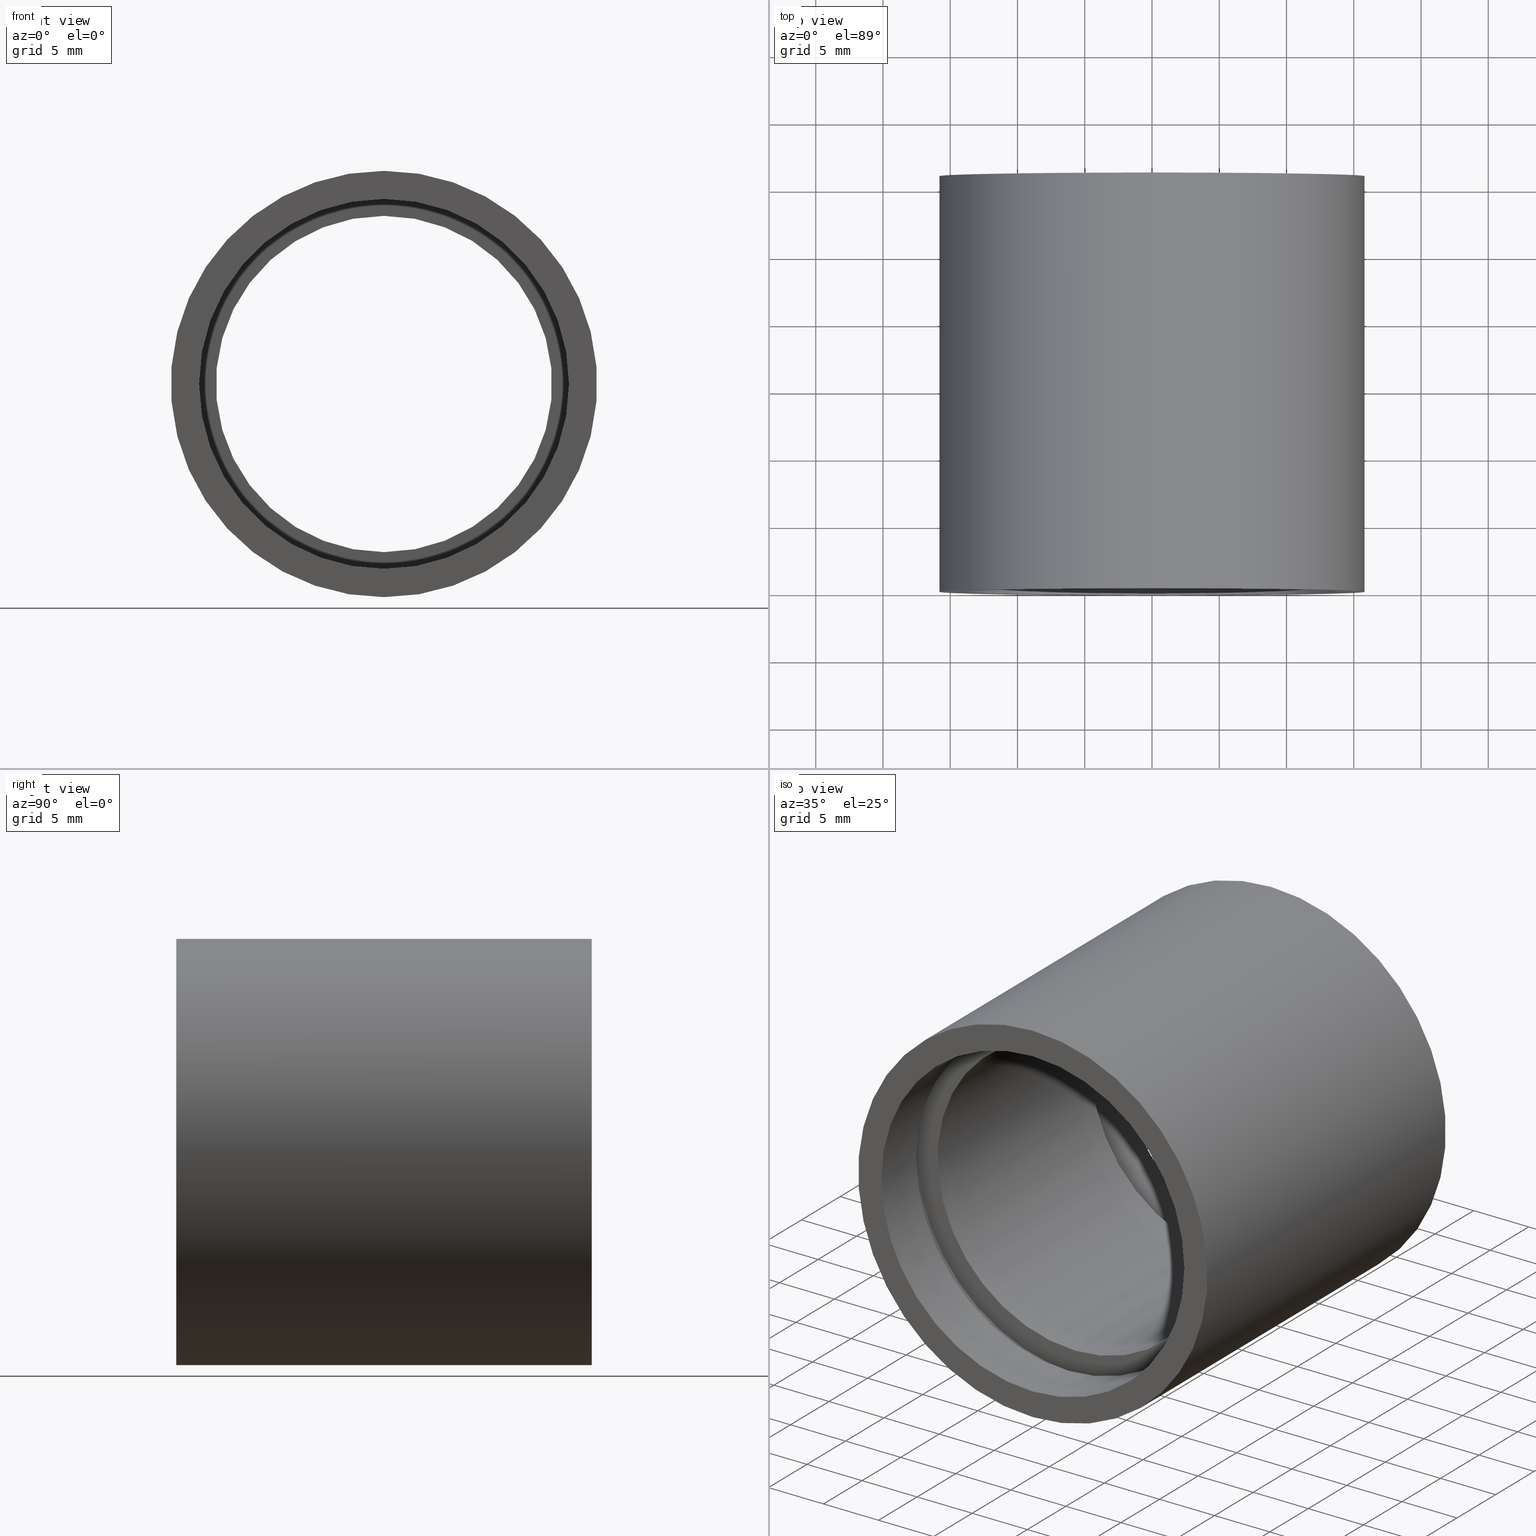
[diagram: canonical four-view strip — front | top / right | iso, engineering-drawing reading convention]
A machine part, canonical four-view strip (front | top / right | iso — engineering-drawing reading convention). The complete STEP part file that produces these views, byte-faithful:
ISO-10303-21;
HEADER;
FILE_DESCRIPTION (( 'STEP AP214' ),
    '1' );
FILE_NAME ('503053.STEP',
    '2019-09-06T07:38:26',
    ( '' ),
    ( '' ),
    'SwSTEP 2.0',
    'SolidWorks 2016',
    '' );
FILE_SCHEMA (( 'AUTOMOTIVE_DESIGN' ));
ENDSEC;

DATA;
#1 = ORIENTED_EDGE ( 'NONE', *, *, #299, .F. ) ;
#2 = PRODUCT_DEFINITION ( 'δ֪', '', #48, #396 ) ;
#3 = ORIENTED_EDGE ( 'NONE', *, *, #485, .T. ) ;
#4 = AXIS2_PLACEMENT_3D ( 'NONE', #561, #272, #467 ) ;
#5 = ORIENTED_EDGE ( 'NONE', *, *, #558, .F. ) ;
#6 =( NAMED_UNIT ( * ) PLANE_ANGLE_UNIT ( ) SI_UNIT ( $, .RADIAN. ) );
#7 =( GEOMETRIC_REPRESENTATION_CONTEXT ( 3 ) GLOBAL_UNCERTAINTY_ASSIGNED_CONTEXT ( ( #147 ) ) GLOBAL_UNIT_ASSIGNED_CONTEXT ( ( #611, #413, #362 ) ) REPRESENTATION_CONTEXT ( 'NONE', 'WORKASPACE' ) );
#8 = CARTESIAN_POINT ( 'NONE',  ( 0.0000000000000000000, 5.499999999999976900, 12.50000000000002000 ) ) ;
#9 =( GEOMETRIC_REPRESENTATION_CONTEXT ( 3 ) GLOBAL_UNCERTAINTY_ASSIGNED_CONTEXT ( ( #531 ) ) GLOBAL_UNIT_ASSIGNED_CONTEXT ( ( #210, #300, #399 ) ) REPRESENTATION_CONTEXT ( 'NONE', 'WORKASPACE' ) );
#10 = DIRECTION ( 'NONE',  ( -0.0000000000000000000, 1.000000000000000000, -0.0000000000000000000 ) ) ;
#11 = DIRECTION ( 'NONE',  ( 0.0000000000000000000, 0.0000000000000000000, 1.000000000000000000 ) ) ;
#12 = LINE ( 'NONE', #206, #423 ) ;
#13 = ORIENTED_EDGE ( 'NONE', *, *, #594, .T. ) ;
#14 = DIRECTION ( 'NONE',  ( 0.0000000000000000000, 0.0000000000000000000, 1.000000000000000000 ) ) ;
#15 = FACE_OUTER_BOUND ( 'NONE', #283, .T. ) ;
#16 = CARTESIAN_POINT ( 'NONE',  ( 1.757368156776454300E-015, 5.499999999999976900, -14.35000000000001900 ) ) ;
#17 = CARTESIAN_POINT ( 'NONE',  ( 0.0000000000000000000, 4.499999999999976000, 0.0000000000000000000 ) ) ;
#18 = EDGE_LOOP ( 'NONE', ( #434, #231, #613, #280 ) ) ;
#19 = FILL_AREA_STYLE ('',( #203 ) ) ;
#20 = AXIS2_PLACEMENT_3D ( 'NONE', #228, #363, #273 ) ;
#21 = CARTESIAN_POINT ( 'NONE',  ( 0.0000000000000000000, 4.499999999999976000, 14.35000000000001900 ) ) ;
#22 = CIRCLE ( 'NONE', #303, 15.85000000000002100 ) ;
#23 = AXIS2_PLACEMENT_3D ( 'NONE', #162, #119, #503 ) ;
#24 = EDGE_CURVE ( 'NONE', #71, #143, #395, .T. ) ;
#25 = DIRECTION ( 'NONE',  ( -0.0000000000000000000, 1.000000000000000000, -0.0000000000000000000 ) ) ;
#26 = DIRECTION ( 'NONE',  ( -0.0000000000000000000, 1.000000000000000000, -0.0000000000000000000 ) ) ;
#27 = CIRCLE ( 'NONE', #435, 12.50000000000002000 ) ;
#28 = DIRECTION ( 'NONE',  ( -0.0000000000000000000, 1.000000000000000000, -0.0000000000000000000 ) ) ;
#29 = DIRECTION ( 'NONE',  ( 0.0000000000000000000, 0.0000000000000000000, 1.000000000000000000 ) ) ;
#30 = CYLINDRICAL_SURFACE ( 'NONE', #20, 14.35000000000001900 ) ;
#31 = DIRECTION ( 'NONE',  ( 0.0000000000000000000, -0.0000000000000000000, -1.000000000000000000 ) ) ;
#32 = SURFACE_STYLE_FILL_AREA ( #459 ) ;
#33 = ORIENTED_EDGE ( 'NONE', *, *, #213, .F. ) ;
#34 = CIRCLE ( 'NONE', #292, 14.35000000000001900 ) ;
#35 = CARTESIAN_POINT ( 'NONE',  ( 0.0000000000000000000, 26.39999999999997700, 0.0000000000000000000 ) ) ;
#36 = SURFACE_STYLE_FILL_AREA ( #496 ) ;
#37 = PRESENTATION_LAYER_ASSIGNMENT (  '', '', ( #287 ) ) ;
#38 = CIRCLE ( 'NONE', #50, 14.25000000000001600 ) ;
#39 = DIRECTION ( 'NONE',  ( -0.0000000000000000000, 1.000000000000000000, -0.0000000000000000000 ) ) ;
#40 = EDGE_LOOP ( 'NONE', ( #229, #437, #525, #589 ) ) ;
#41 = ORIENTED_EDGE ( 'NONE', *, *, #504, .F. ) ;
#42 = EDGE_CURVE ( 'NONE', #438, #60, #256, .T. ) ;
#43 = ADVANCED_FACE ( 'NONE', ( #142 ), #414, .F. ) ;
#44 = AXIS2_PLACEMENT_3D ( 'NONE', #168, #312, #63 ) ;
#45 = UNCERTAINTY_MEASURE_WITH_UNIT (LENGTH_MEASURE( 1.000000000000000100E-005 ), #472, 'distance_accuracy_value', 'NONE');
#46 = CARTESIAN_POINT ( 'NONE',  ( 0.0000000000000000000, 4.499999999999976000, 0.0000000000000000000 ) ) ;
#47 = CIRCLE ( 'NONE', #130, 14.35000000000001900 ) ;
#48 = PRODUCT_DEFINITION_FORMATION_WITH_SPECIFIED_SOURCE ( '�κ�', '', #554, .NOT_KNOWN. ) ;
#49 = ORIENTED_EDGE ( 'NONE', *, *, #251, .T. ) ;
#50 = AXIS2_PLACEMENT_3D ( 'NONE', #100, #240, #584 ) ;
#51 = ORIENTED_EDGE ( 'NONE', *, *, #617, .F. ) ;
#52 = ORIENTED_EDGE ( 'NONE', *, *, #481, .F. ) ;
#53 = AXIS2_PLACEMENT_3D ( 'NONE', #177, #519, #411 ) ;
#54 = CARTESIAN_POINT ( 'NONE',  ( 0.0000000000000000000, 5.499999999999976900, 0.0000000000000000000 ) ) ;
#55 =( GEOMETRIC_REPRESENTATION_CONTEXT ( 3 ) GLOBAL_UNCERTAINTY_ASSIGNED_CONTEXT ( ( #377 ) ) GLOBAL_UNIT_ASSIGNED_CONTEXT ( ( #397, #212, #543 ) ) REPRESENTATION_CONTEXT ( 'NONE', 'WORKASPACE' ) );
#56 = ORIENTED_EDGE ( 'NONE', *, *, #81, .F. ) ;
#57 = ORIENTED_EDGE ( 'NONE', *, *, #137, .F. ) ;
#58 = CARTESIAN_POINT ( 'NONE',  ( 13.75000000000002100, -1.554524340841388500E-014, 0.0000000000000000000 ) ) ;
#59 = FACE_OUTER_BOUND ( 'NONE', #277, .T. ) ;
#60 = VERTEX_POINT ( 'NONE', #21 ) ;
#61 = FILL_AREA_STYLE_COLOUR ( '', #477 ) ;
#62 = SURFACE_STYLE_FILL_AREA ( #450 ) ;
#63 = DIRECTION ( 'NONE',  ( 0.0000000000000000000, 0.0000000000000000000, 1.000000000000000000 ) ) ;
#64 = VECTOR ( 'NONE', #385, 1000.000000000000000 ) ;
#65 = AXIS2_PLACEMENT_3D ( 'NONE', #46, #281, #96 ) ;
#66 = PLANE ( 'NONE',  #332 ) ;
#67 = ORIENTED_EDGE ( 'NONE', *, *, #610, .F. ) ;
#68 = DIRECTION ( 'NONE',  ( -0.0000000000000000000, 1.000000000000000000, -0.0000000000000000000 ) ) ;
#69 = COLOUR_RGB ( '',1.000000000000000000, 1.000000000000000000, 1.000000000000000000 ) ;
#70 = ORIENTED_EDGE ( 'NONE', *, *, #479, .F. ) ;
#71 = VERTEX_POINT ( 'NONE', #117 ) ;
#72 = DIRECTION ( 'NONE',  ( -0.0000000000000000000, 1.000000000000000000, -0.0000000000000000000 ) ) ;
#73 = FILL_AREA_STYLE_COLOUR ( '', #282 ) ;
#74 = DIRECTION ( 'NONE',  ( 0.0000000000000000000, 0.0000000000000000000, 1.000000000000000000 ) ) ;
#75 = AXIS2_PLACEMENT_3D ( 'NONE', #521, #236, #572 ) ;
#76 = CARTESIAN_POINT ( 'NONE',  ( 14.25000000000001600, 26.39999999999997700, 0.0000000000000000000 ) ) ;
#77 = ORIENTED_EDGE ( 'NONE', *, *, #558, .T. ) ;
#78 = PLANE ( 'NONE',  #382 ) ;
#79 = CARTESIAN_POINT ( 'NONE',  ( 0.0000000000000000000, 25.39999999999997700, 14.35000000000001900 ) ) ;
#80 = ORIENTED_EDGE ( 'NONE', *, *, #308, .F. ) ;
#81 = EDGE_CURVE ( 'NONE', #166, #327, #433, .T. ) ;
#82 = FILL_AREA_STYLE_COLOUR ( '', #69 ) ;
#83 = CARTESIAN_POINT ( 'NONE',  ( 1.941065176648557100E-015, 161.3761669434274500, -15.85000000000002100 ) ) ;
#84 = AXIS2_PLACEMENT_3D ( 'NONE', #524, #238, #333 ) ;
#85 = ADVANCED_FACE ( 'NONE', ( #59 ), #323, .F. ) ;
#86 = CARTESIAN_POINT ( 'NONE',  ( 1.745121688784980200E-015, 26.39999999999997700, -14.25000000000001600 ) ) ;
#87 = ORIENTED_EDGE ( 'NONE', *, *, #213, .T. ) ;
#88 = LINE ( 'NONE', #92, #537 ) ;
#89 = DIRECTION ( 'NONE',  ( 0.0000000000000000000, 0.0000000000000000000, 1.000000000000000000 ) ) ;
#90 = EDGE_CURVE ( 'NONE', #139, #553, #187, .T. ) ;
#91 = CARTESIAN_POINT ( 'NONE',  ( 1.745121688784980200E-015, 161.3761669434274500, -14.25000000000001600 ) ) ;
#92 = CARTESIAN_POINT ( 'NONE',  ( 0.0000000000000000000, 161.3761669434274500, 15.85000000000002100 ) ) ;
#93 = ORIENTED_EDGE ( 'NONE', *, *, #42, .F. ) ;
#94 = AXIS2_PLACEMENT_3D ( 'NONE', #302, #392, #500 ) ;
#95 = LINE ( 'NONE', #614, #480 ) ;
#96 = DIRECTION ( 'NONE',  ( 0.0000000000000000000, 0.0000000000000000000, 1.000000000000000000 ) ) ;
#97 = EDGE_CURVE ( 'NONE', #164, #530, #612, .T. ) ;
#98 = COLOUR_RGB ( '',1.000000000000000000, 1.000000000000000000, 1.000000000000000000 ) ;
#99 = CIRCLE ( 'NONE', #65, 13.75000000000002100 ) ;
#100 = CARTESIAN_POINT ( 'NONE',  ( 0.0000000000000000000, 26.39999999999997700, 0.0000000000000000000 ) ) ;
#101 = ORIENTED_EDGE ( 'NONE', *, *, #594, .F. ) ;
#102 = EDGE_LOOP ( 'NONE', ( #93, #426, #161, #194 ) ) ;
#103 = AXIS2_PLACEMENT_3D ( 'NONE', #58, #243, #582 ) ;
#104 = ORIENTED_EDGE ( 'NONE', *, *, #42, .T. ) ;
#106 = AXIS2_PLACEMENT_3D ( 'NONE', #132, #181, #276 ) ;
#105 = DIRECTION ( 'NONE',  ( 0.0000000000000000000, 0.0000000000000000000, 1.000000000000000000 ) ) ;
#107 = CARTESIAN_POINT ( 'NONE',  ( 0.0000000000000000000, -2.775557561562891400E-014, 0.0000000000000000000 ) ) ;
#108 = CARTESIAN_POINT ( 'NONE',  ( 0.0000000000000000000, 4.499999999999976000, 0.0000000000000000000 ) ) ;
#109 = PRESENTATION_LAYER_ASSIGNMENT (  '', '', ( #234 ) ) ;
#110 =( GEOMETRIC_REPRESENTATION_CONTEXT ( 3 ) GLOBAL_UNCERTAINTY_ASSIGNED_CONTEXT ( ( #313 ) ) GLOBAL_UNIT_ASSIGNED_CONTEXT ( ( #344, #252, #153 ) ) REPRESENTATION_CONTEXT ( 'NONE', 'WORKASPACE' ) );
#111 = VERTEX_POINT ( 'NONE', #599 ) ;
#112 = DIRECTION ( 'NONE',  ( 0.0000000000000000000, 0.0000000000000000000, 1.000000000000000000 ) ) ;
#113 = ORIENTED_EDGE ( 'NONE', *, *, #97, .F. ) ;
#114 = PRESENTATION_STYLE_ASSIGNMENT (( #123 ) ) ;
#115 = DIRECTION ( 'NONE',  ( 0.0000000000000000000, -0.0000000000000000000, -1.000000000000000000 ) ) ;
#116 = CARTESIAN_POINT ( 'NONE',  ( 0.0000000000000000000, 30.89999999999998400, 14.25000000000001600 ) ) ;
#117 = CARTESIAN_POINT ( 'NONE',  ( 1.683889348827613200E-015, -2.775557561562891400E-014, -13.75000000000002100 ) ) ;
#118 = EDGE_CURVE ( 'NONE', #143, #179, #348, .T. ) ;
#119 = DIRECTION ( 'NONE',  ( -0.0000000000000000000, 1.000000000000000000, -0.0000000000000000000 ) ) ;
#120 = AXIS2_PLACEMENT_3D ( 'NONE', #405, #547, #260 ) ;
#121 = DIRECTION ( 'NONE',  ( 0.0000000000000000000, 0.0000000000000000000, 1.000000000000000000 ) ) ;
#122 = DIRECTION ( 'NONE',  ( -0.0000000000000000000, 1.000000000000000000, 0.0000000000000000000 ) ) ;
#123 = SURFACE_STYLE_USAGE ( .BOTH. , #324 ) ;
#124 = SURFACE_SIDE_STYLE ('',( #515 ) ) ;
#125 = ADVANCED_FACE ( 'NONE', ( #466 ), #498, .F. ) ;
#126 = ORIENTED_EDGE ( 'NONE', *, *, #454, .F. ) ;
#127 = FACE_BOUND ( 'NONE', #253, .T. ) ;
#128 = CARTESIAN_POINT ( 'NONE',  ( 0.0000000000000000000, 161.3761669434274500, 14.25000000000001600 ) ) ;
#129 = DIRECTION ( 'NONE',  ( -0.0000000000000000000, 1.000000000000000000, -0.0000000000000000000 ) ) ;
#130 = AXIS2_PLACEMENT_3D ( 'NONE', #54, #204, #11 ) ;
#131 = CARTESIAN_POINT ( 'NONE',  ( 0.0000000000000000000, 4.499999999999976000, 0.0000000000000000000 ) ) ;
#132 = CARTESIAN_POINT ( 'NONE',  ( 0.0000000000000000000, 25.39999999999997700, 0.0000000000000000000 ) ) ;
#133 = AXIS2_PLACEMENT_3D ( 'NONE', #76, #122, #163 ) ;
#134 = ADVANCED_FACE ( 'NONE', ( #15, #371 ), #359, .F. ) ;
#135 = DIRECTION ( 'NONE',  ( 0.0000000000000000000, -1.000000000000000000, 0.0000000000000000000 ) ) ;
#136 = AXIS2_PLACEMENT_3D ( 'NONE', #350, #534, #493 ) ;
#137 = EDGE_CURVE ( 'NONE', #143, #71, #254, .T. ) ;
#138 = CIRCLE ( 'NONE', #270, 14.25000000000001600 ) ;
#139 = VERTEX_POINT ( 'NONE', #393 ) ;
#140 = PRESENTATION_STYLE_ASSIGNMENT (( #364 ) ) ;
#141 = ORIENTED_EDGE ( 'NONE', *, *, #341, .F. ) ;
#142 = FACE_OUTER_BOUND ( 'NONE', #339, .T. ) ;
#143 = VERTEX_POINT ( 'NONE', #542 ) ;
#144 = LINE ( 'NONE', #156, #522 ) ;
#145 = MECHANICAL_DESIGN_GEOMETRIC_PRESENTATION_REPRESENTATION (  '', ( #555 ), #55 ) ;
#146 = EDGE_CURVE ( 'NONE', #550, #111, #526, .T. ) ;
#147 = UNCERTAINTY_MEASURE_WITH_UNIT (LENGTH_MEASURE( 1.000000000000000100E-005 ), #611, 'distance_accuracy_value', 'NONE');
#148 = CARTESIAN_POINT ( 'NONE',  ( 0.0000000000000000000, 161.3761669434274500, 0.0000000000000000000 ) ) ;
#149 = DIRECTION ( 'NONE',  ( -0.0000000000000000000, 1.000000000000000000, -0.0000000000000000000 ) ) ;
#150 = EDGE_LOOP ( 'NONE', ( #141, #618, #232, #511 ) ) ;
#151 = CYLINDRICAL_SURFACE ( 'NONE', #588, 14.25000000000001600 ) ;
#152 = EDGE_LOOP ( 'NONE', ( #606, #209 ) ) ;
#153 =( NAMED_UNIT ( * ) SI_UNIT ( $, .STERADIAN. ) SOLID_ANGLE_UNIT ( ) );
#154 = DIRECTION ( 'NONE',  ( 0.0000000000000000000, 0.0000000000000000000, 1.000000000000000000 ) ) ;
#155 = CARTESIAN_POINT ( 'NONE',  ( 0.0000000000000000000, 161.3761669434274500, 13.75000000000002100 ) ) ;
#156 = CARTESIAN_POINT ( 'NONE',  ( 0.0000000000000000000, 161.3761669434274500, 12.50000000000002000 ) ) ;
#157 = MECHANICAL_DESIGN_GEOMETRIC_PRESENTATION_REPRESENTATION (  '', ( #287 ), #9 ) ;
#158 = CARTESIAN_POINT ( 'NONE',  ( 0.0000000000000000000, 4.499999999999976000, 13.75000000000002100 ) ) ;
#159 = LINE ( 'NONE', #417, #249 ) ;
#160 = DIRECTION ( 'NONE',  ( -0.0000000000000000000, 1.000000000000000000, -0.0000000000000000000 ) ) ;
#161 = ORIENTED_EDGE ( 'NONE', *, *, #617, .T. ) ;
#162 = CARTESIAN_POINT ( 'NONE',  ( 0.0000000000000000000, 161.3761669434274500, 0.0000000000000000000 ) ) ;
#163 = DIRECTION ( 'NONE',  ( 0.0000000000000000000, 0.0000000000000000000, 1.000000000000000000 ) ) ;
#164 = VERTEX_POINT ( 'NONE', #463 ) ;
#165 =( NAMED_UNIT ( * ) SI_UNIT ( $, .STERADIAN. ) SOLID_ANGLE_UNIT ( ) );
#166 = VERTEX_POINT ( 'NONE', #264 ) ;
#167 = AXIS2_PLACEMENT_3D ( 'NONE', #501, #217, #351 ) ;
#168 = CARTESIAN_POINT ( 'NONE',  ( 0.0000000000000000000, 5.499999999999976900, 0.0000000000000000000 ) ) ;
#169 = FACE_BOUND ( 'NONE', #235, .T. ) ;
#170 = DIRECTION ( 'NONE',  ( 0.0000000000000000000, 0.0000000000000000000, 1.000000000000000000 ) ) ;
#171 = CARTESIAN_POINT ( 'NONE',  ( 0.0000000000000000000, 5.499999999999976900, 0.0000000000000000000 ) ) ;
#172 = PRODUCT_RELATED_PRODUCT_CATEGORY ( 'part', '', ( #554 ) ) ;
#173 = FACE_OUTER_BOUND ( 'NONE', #102, .T. ) ;
#174 = ADVANCED_FACE ( 'NONE', ( #127, #271 ), #66, .F. ) ;
#175 = CIRCLE ( 'NONE', #357, 15.85000000000002100 ) ;
#176 = ORIENTED_EDGE ( 'NONE', *, *, #97, .T. ) ;
#177 = CARTESIAN_POINT ( 'NONE',  ( 0.0000000000000000000, 25.39999999999997700, 0.0000000000000000000 ) ) ;
#178 = PRESENTATION_STYLE_ASSIGNMENT (( #540 ) ) ;
#179 = VERTEX_POINT ( 'NONE', #158 ) ;
#180 = EDGE_CURVE ( 'NONE', #615, #196, #34, .T. ) ;
#181 = DIRECTION ( 'NONE',  ( -0.0000000000000000000, 1.000000000000000000, -0.0000000000000000000 ) ) ;
#182 = ORIENTED_EDGE ( 'NONE', *, *, #299, .T. ) ;
#183 = PRESENTATION_LAYER_ASSIGNMENT (  '', '', ( #407 ) ) ;
#184 = FACE_OUTER_BOUND ( 'NONE', #457, .T. ) ;
#185 = EDGE_LOOP ( 'NONE', ( #193, #51 ) ) ;
#186 = UNCERTAINTY_MEASURE_WITH_UNIT (LENGTH_MEASURE( 1.000000000000000100E-005 ), #487, 'distance_accuracy_value', 'NONE');
#187 = CIRCLE ( 'NONE', #345, 12.50000000000002000 ) ;
#188 = FACE_OUTER_BOUND ( 'NONE', #185, .T. ) ;
#189 = ORIENTED_EDGE ( 'NONE', *, *, #251, .F. ) ;
#190 = STYLED_ITEM ( 'NONE', ( #528 ), #607 ) ;
#191 = LINE ( 'NONE', #255, #296 ) ;
#192 = ORIENTED_EDGE ( 'NONE', *, *, #146, .F. ) ;
#193 = ORIENTED_EDGE ( 'NONE', *, *, #180, .F. ) ;
#194 = ORIENTED_EDGE ( 'NONE', *, *, #374, .F. ) ;
#195 = UNCERTAINTY_MEASURE_WITH_UNIT (LENGTH_MEASURE( 1.000000000000000100E-005 ), #408, 'distance_accuracy_value', 'NONE');
#196 = VERTEX_POINT ( 'NONE', #16 ) ;
#197 = COLOUR_RGB ( '',1.000000000000000000, 1.000000000000000000, 1.000000000000000000 ) ;
#198 = AXIS2_PLACEMENT_3D ( 'NONE', #107, #444, #154 ) ;
#200 = STYLED_ITEM ( 'NONE', ( #140 ), #226 ) ;
#199 = APPLICATION_CONTEXT ( 'automotive_design' ) ;
#201 = CARTESIAN_POINT ( 'NONE',  ( 0.0000000000000000000, 25.39999999999997700, 12.50000000000002000 ) ) ;
#202 = VERTEX_POINT ( 'NONE', #605 ) ;
#203 = FILL_AREA_STYLE_COLOUR ( '', #197 ) ;
#204 = DIRECTION ( 'NONE',  ( -0.0000000000000000000, 1.000000000000000000, -0.0000000000000000000 ) ) ;
#205 = AXIS2_PLACEMENT_3D ( 'NONE', #452, #603, #112 ) ;
#206 = CARTESIAN_POINT ( 'NONE',  ( 0.0000000000000000000, 161.3761669434274500, 14.35000000000001900 ) ) ;
#207 = CIRCLE ( 'NONE', #367, 14.25000000000001600 ) ;
#208 = SURFACE_SIDE_STYLE ('',( #36 ) ) ;
#209 = ORIENTED_EDGE ( 'NONE', *, *, #90, .F. ) ;
#210 =( LENGTH_UNIT ( ) NAMED_UNIT ( * ) SI_UNIT ( .MILLI., .METRE. ) );
#211 = EDGE_LOOP ( 'NONE', ( #298, #87, #113, #218 ) ) ;
#212 =( NAMED_UNIT ( * ) PLANE_ANGLE_UNIT ( ) SI_UNIT ( $, .RADIAN. ) );
#213 = EDGE_CURVE ( 'NONE', #571, #530, #415, .T. ) ;
#214 = FILL_AREA_STYLE_COLOUR ( '', #391 ) ;
#215 = DIRECTION ( 'NONE',  ( 0.0000000000000000000, 0.0000000000000000000, 1.000000000000000000 ) ) ;
#216 = SURFACE_SIDE_STYLE ('',( #227 ) ) ;
#217 = DIRECTION ( 'NONE',  ( -0.0000000000000000000, 1.000000000000000000, -0.0000000000000000000 ) ) ;
#218 = ORIENTED_EDGE ( 'NONE', *, *, #354, .F. ) ;
#219 = MECHANICAL_DESIGN_GEOMETRIC_PRESENTATION_REPRESENTATION (  '', ( #407 ), #263 ) ;
#220 = SURFACE_SIDE_STYLE ('',( #62 ) ) ;
#221 = CIRCLE ( 'NONE', #469, 14.35000000000001700 ) ;
#222 = SURFACE_STYLE_FILL_AREA ( #601 ) ;
#223 = DIRECTION ( 'NONE',  ( 0.0000000000000000000, 0.0000000000000000000, 1.000000000000000000 ) ) ;
#224 = CARTESIAN_POINT ( 'NONE',  ( 0.0000000000000000000, 161.3761669434274500, 0.0000000000000000000 ) ) ;
#225 = PRESENTATION_STYLE_ASSIGNMENT (( #551 ) ) ;
#226 = ADVANCED_FACE ( 'NONE', ( #244 ), #151, .F. ) ;
#227 = SURFACE_STYLE_FILL_AREA ( #19 ) ;
#228 = CARTESIAN_POINT ( 'NONE',  ( 0.0000000000000000000, 161.3761669434274500, 0.0000000000000000000 ) ) ;
#229 = ORIENTED_EDGE ( 'NONE', *, *, #24, .F. ) ;
#230 = FACE_OUTER_BOUND ( 'NONE', #446, .T. ) ;
#231 = ORIENTED_EDGE ( 'NONE', *, *, #401, .F. ) ;
#232 = ORIENTED_EDGE ( 'NONE', *, *, #479, .T. ) ;
#233 = PRESENTATION_LAYER_ASSIGNMENT (  '', '', ( #520 ) ) ;
#234 = STYLED_ITEM ( 'NONE', ( #462 ), #412 ) ;
#235 = EDGE_LOOP ( 'NONE', ( #239, #182 ) ) ;
#236 = DIRECTION ( 'NONE',  ( -0.0000000000000000000, 1.000000000000000000, -0.0000000000000000000 ) ) ;
#237 = ADVANCED_FACE ( 'NONE', ( #230 ), #494, .T. ) ;
#238 = DIRECTION ( 'NONE',  ( -0.0000000000000000000, 1.000000000000000000, -0.0000000000000000000 ) ) ;
#239 = ORIENTED_EDGE ( 'NONE', *, *, #146, .T. ) ;
#240 = DIRECTION ( 'NONE',  ( -0.0000000000000000000, 1.000000000000000000, -0.0000000000000000000 ) ) ;
#241 = MECHANICAL_DESIGN_GEOMETRIC_PRESENTATION_REPRESENTATION (  '', ( #190 ), #110 ) ;
#242 = CLOSED_SHELL ( 'NONE', ( #429, #321, #43, #468, #226, #624, #560, #237, #523, #85, #134, #478, #279, #125, #575, #268, #174, #331 ) ) ;
#243 = DIRECTION ( 'NONE',  ( -0.0000000000000000000, 1.000000000000000000, 0.0000000000000000000 ) ) ;
#244 = FACE_OUTER_BOUND ( 'NONE', #548, .T. ) ;
#245 = STYLED_ITEM ( 'NONE', ( #319 ), #85 ) ;
#246 = CARTESIAN_POINT ( 'NONE',  ( 1.941065176648557100E-015, 30.89999999999998400, -15.85000000000002100 ) ) ;
#247 =( NAMED_UNIT ( * ) SI_UNIT ( $, .STERADIAN. ) SOLID_ANGLE_UNIT ( ) );
#248 = FILL_AREA_STYLE_COLOUR ( '', #275 ) ;
#249 = VECTOR ( 'NONE', #326, 1000.000000000000000 ) ;
#250 = SURFACE_SIDE_STYLE ('',( #436 ) ) ;
#251 = EDGE_CURVE ( 'NONE', #530, #164, #579, .T. ) ;
#252 =( NAMED_UNIT ( * ) PLANE_ANGLE_UNIT ( ) SI_UNIT ( $, .RADIAN. ) );
#253 = EDGE_LOOP ( 'NONE', ( #80, #314 ) ) ;
#254 = CIRCLE ( 'NONE', #167, 13.75000000000002100 ) ;
#255 = CARTESIAN_POINT ( 'NONE',  ( 1.757368156776454300E-015, 161.3761669434274500, -14.35000000000001900 ) ) ;
#256 = CIRCLE ( 'NONE', #489, 14.35000000000001900 ) ;
#257 = AXIS2_PLACEMENT_3D ( 'NONE', #17, #352, #499 ) ;
#258 = AXIS2_PLACEMENT_3D ( 'NONE', #148, #538, #447 ) ;
#259 = CARTESIAN_POINT ( 'NONE',  ( 0.0000000000000000000, 25.39999999999997700, 0.0000000000000000000 ) ) ;
#260 = DIRECTION ( 'NONE',  ( 0.0000000000000000000, 0.0000000000000000000, 1.000000000000000000 ) ) ;
#261 = FACE_OUTER_BOUND ( 'NONE', #150, .T. ) ;
#262 = UNCERTAINTY_MEASURE_WITH_UNIT (LENGTH_MEASURE( 1.000000000000000100E-005 ), #356, 'distance_accuracy_value', 'NONE');
#263 =( GEOMETRIC_REPRESENTATION_CONTEXT ( 3 ) GLOBAL_UNCERTAINTY_ASSIGNED_CONTEXT ( ( #195 ) ) GLOBAL_UNIT_ASSIGNED_CONTEXT ( ( #408, #355, #602 ) ) REPRESENTATION_CONTEXT ( 'NONE', 'WORKASPACE' ) );
#264 = CARTESIAN_POINT ( 'NONE',  ( 0.0000000000000000000, 26.39999999999997700, 14.35000000000001700 ) ) ;
#265 = DIRECTION ( 'NONE',  ( 0.0000000000000000000, 0.0000000000000000000, 1.000000000000000000 ) ) ;
#266 = FACE_OUTER_BOUND ( 'NONE', #529, .T. ) ;
#267 = MECHANICAL_DESIGN_GEOMETRIC_PRESENTATION_REPRESENTATION (  '', ( #234 ), #509 ) ;
#268 = ADVANCED_FACE ( 'NONE', ( #513 ), #347, .F. ) ;
#269 = VERTEX_POINT ( 'NONE', #86 ) ;
#270 = AXIS2_PLACEMENT_3D ( 'NONE', #291, #386, #105 ) ;
#271 = FACE_OUTER_BOUND ( 'NONE', #495, .T. ) ;
#272 = DIRECTION ( 'NONE',  ( -0.0000000000000000000, 1.000000000000000000, -0.0000000000000000000 ) ) ;
#273 = DIRECTION ( 'NONE',  ( 0.0000000000000000000, 0.0000000000000000000, 1.000000000000000000 ) ) ;
#274 = ORIENTED_EDGE ( 'NONE', *, *, #578, .F. ) ;
#275 = COLOUR_RGB ( '',1.000000000000000000, 1.000000000000000000, 1.000000000000000000 ) ;
#276 = DIRECTION ( 'NONE',  ( 0.0000000000000000000, 0.0000000000000000000, 1.000000000000000000 ) ) ;
#277 = EDGE_LOOP ( 'NONE', ( #41, #5, #476, #13 ) ) ;
#278 =( GEOMETRIC_REPRESENTATION_CONTEXT ( 3 ) GLOBAL_UNCERTAINTY_ASSIGNED_CONTEXT ( ( #262 ) ) GLOBAL_UNIT_ASSIGNED_CONTEXT ( ( #356, #604, #165 ) ) REPRESENTATION_CONTEXT ( 'NONE', 'WORKASPACE' ) );
#279 = ADVANCED_FACE ( 'NONE', ( #309, #568 ), #78, .F. ) ;
#280 = ORIENTED_EDGE ( 'NONE', *, *, #180, .T. ) ;
#281 = DIRECTION ( 'NONE',  ( -0.0000000000000000000, 1.000000000000000000, -0.0000000000000000000 ) ) ;
#282 = COLOUR_RGB ( '',1.000000000000000000, 1.000000000000000000, 1.000000000000000000 ) ;
#283 = EDGE_LOOP ( 'NONE', ( #56, #70 ) ) ;
#284 = VECTOR ( 'NONE', #26, 1000.000000000000000 ) ;
#285 = LINE ( 'NONE', #334, #400 ) ;
#286 = AXIS2_PLACEMENT_3D ( 'NONE', #317, #552, #170 ) ;
#287 = STYLED_ITEM ( 'NONE', ( #178 ), #429 ) ;
#288 = EDGE_LOOP ( 'NONE', ( #536, #483 ) ) ;
#289 = DIRECTION ( 'NONE',  ( 0.0000000000000000000, 0.0000000000000000000, 1.000000000000000000 ) ) ;
#290 = EDGE_LOOP ( 'NONE', ( #310, #311 ) ) ;
#292 = AXIS2_PLACEMENT_3D ( 'NONE', #171, #409, #29 ) ;
#291 = CARTESIAN_POINT ( 'NONE',  ( 0.0000000000000000000, 26.39999999999997700, 0.0000000000000000000 ) ) ;
#293 = FACE_OUTER_BOUND ( 'NONE', #290, .T. ) ;
#294 = PLANE ( 'NONE',  #103 ) ;
#295 = FILL_AREA_STYLE ('',( #596 ) ) ;
#296 = VECTOR ( 'NONE', #502, 1000.000000000000000 ) ;
#297 = ORIENTED_EDGE ( 'NONE', *, *, #490, .F. ) ;
#298 = ORIENTED_EDGE ( 'NONE', *, *, #440, .T. ) ;
#299 = EDGE_CURVE ( 'NONE', #111, #550, #368, .T. ) ;
#300 =( NAMED_UNIT ( * ) PLANE_ANGLE_UNIT ( ) SI_UNIT ( $, .RADIAN. ) );
#301 = CARTESIAN_POINT ( 'NONE',  ( 0.0000000000000000000, 25.39999999999997700, 0.0000000000000000000 ) ) ;
#302 = CARTESIAN_POINT ( 'NONE',  ( 0.0000000000000000000, 161.3761669434274500, 0.0000000000000000000 ) ) ;
#303 = AXIS2_PLACEMENT_3D ( 'NONE', #394, #160, #215 ) ;
#304 = DIRECTION ( 'NONE',  ( -0.0000000000000000000, 1.000000000000000000, -0.0000000000000000000 ) ) ;
#305 = CYLINDRICAL_SURFACE ( 'NONE', #4, 14.35000000000001900 ) ;
#306 = SURFACE_SIDE_STYLE ('',( #222 ) ) ;
#307 = CARTESIAN_POINT ( 'NONE',  ( 0.0000000000000000000, 30.89999999999998400, 0.0000000000000000000 ) ) ;
#308 = EDGE_CURVE ( 'NONE', #179, #421, #388, .T. ) ;
#309 = FACE_BOUND ( 'NONE', #152, .T. ) ;
#310 = ORIENTED_EDGE ( 'NONE', *, *, #440, .F. ) ;
#311 = ORIENTED_EDGE ( 'NONE', *, *, #583, .F. ) ;
#312 = DIRECTION ( 'NONE',  ( -0.0000000000000000000, 1.000000000000000000, -0.0000000000000000000 ) ) ;
#313 = UNCERTAINTY_MEASURE_WITH_UNIT (LENGTH_MEASURE( 1.000000000000000100E-005 ), #344, 'distance_accuracy_value', 'NONE');
#314 = ORIENTED_EDGE ( 'NONE', *, *, #517, .F. ) ;
#315 = PRESENTATION_LAYER_ASSIGNMENT (  '', '', ( #555 ) ) ;
#316 = DIRECTION ( 'NONE',  ( 0.0000000000000000000, 0.0000000000000000000, 1.000000000000000000 ) ) ;
#317 = CARTESIAN_POINT ( 'NONE',  ( 0.0000000000000000000, 161.3761669434274500, 0.0000000000000000000 ) ) ;
#318 = CARTESIAN_POINT ( 'NONE',  ( 12.50000000000002000, 25.39999999999997700, 0.0000000000000000000 ) ) ;
#319 = PRESENTATION_STYLE_ASSIGNMENT (( #506 ) ) ;
#320 = VERTEX_POINT ( 'NONE', #474 ) ;
#321 = ADVANCED_FACE ( 'NONE', ( #173 ), #30, .F. ) ;
#322 = CARTESIAN_POINT ( 'NONE',  ( 0.0000000000000000000, 30.89999999999998400, 0.0000000000000000000 ) ) ;
#323 = CYLINDRICAL_SURFACE ( 'NONE', #23, 14.25000000000001600 ) ;
#324 = SURFACE_SIDE_STYLE ('',( #340 ) ) ;
#325 = CYLINDRICAL_SURFACE ( 'NONE', #258, 15.85000000000002100 ) ;
#326 = DIRECTION ( 'NONE',  ( -0.0000000000000000000, 1.000000000000000000, -0.0000000000000000000 ) ) ;
#327 = VERTEX_POINT ( 'NONE', #372 ) ;
#328 = AXIS2_PLACEMENT_3D ( 'NONE', #322, #25, #223 ) ;
#329 = EDGE_LOOP ( 'NONE', ( #101, #576 ) ) ;
#330 = LINE ( 'NONE', #91, #420 ) ;
#331 = ADVANCED_FACE ( 'NONE', ( #380 ), #455, .F. ) ;
#332 = AXIS2_PLACEMENT_3D ( 'NONE', #549, #398, #115 ) ;
#333 = DIRECTION ( 'NONE',  ( 0.0000000000000000000, 0.0000000000000000000, 1.000000000000000000 ) ) ;
#334 = CARTESIAN_POINT ( 'NONE',  ( 1.757368156776454300E-015, 161.3761669434274500, -14.35000000000001900 ) ) ;
#335 = CARTESIAN_POINT ( 'NONE',  ( 0.0000000000000000000, -2.775557561562891400E-014, 15.85000000000002100 ) ) ;
#336 =( GEOMETRIC_REPRESENTATION_CONTEXT ( 3 ) GLOBAL_UNCERTAINTY_ASSIGNED_CONTEXT ( ( #427 ) ) GLOBAL_UNIT_ASSIGNED_CONTEXT ( ( #591, #441, #247 ) ) REPRESENTATION_CONTEXT ( 'NONE', 'WORKASPACE' ) );
#337 = CIRCLE ( 'NONE', #84, 14.25000000000001600 ) ;
#338 = SURFACE_STYLE_USAGE ( .BOTH. , #216 ) ;
#339 = EDGE_LOOP ( 'NONE', ( #1, #600, #559, #126 ) ) ;
#340 = SURFACE_STYLE_FILL_AREA ( #616 ) ;
#341 = EDGE_CURVE ( 'NONE', #428, #597, #585, .T. ) ;
#342 =( NAMED_UNIT ( * ) SI_UNIT ( $, .STERADIAN. ) SOLID_ANGLE_UNIT ( ) );
#343 = FACE_BOUND ( 'NONE', #329, .T. ) ;
#344 =( LENGTH_UNIT ( ) NAMED_UNIT ( * ) SI_UNIT ( .MILLI., .METRE. ) );
#345 = AXIS2_PLACEMENT_3D ( 'NONE', #259, #304, #74 ) ;
#346 = EDGE_CURVE ( 'NONE', #597, #428, #545, .T. ) ;
#347 = CYLINDRICAL_SURFACE ( 'NONE', #486, 14.35000000000001900 ) ;
#348 = LINE ( 'NONE', #155, #448 ) ;
#349 = CARTESIAN_POINT ( 'NONE',  ( 1.683889348827613200E-015, 4.499999999999976000, -13.75000000000002100 ) ) ;
#350 = CARTESIAN_POINT ( 'NONE',  ( 0.0000000000000000000, 0.0000000000000000000, 0.0000000000000000000 ) ) ;
#351 = DIRECTION ( 'NONE',  ( 0.0000000000000000000, 0.0000000000000000000, 1.000000000000000000 ) ) ;
#352 = DIRECTION ( 'NONE',  ( -0.0000000000000000000, 1.000000000000000000, -0.0000000000000000000 ) ) ;
#353 = EDGE_LOOP ( 'NONE', ( #52, #192, #539, #580 ) ) ;
#354 = EDGE_CURVE ( 'NONE', #567, #164, #88, .T. ) ;
#355 =( NAMED_UNIT ( * ) PLANE_ANGLE_UNIT ( ) SI_UNIT ( $, .RADIAN. ) );
#356 =( LENGTH_UNIT ( ) NAMED_UNIT ( * ) SI_UNIT ( .MILLI., .METRE. ) );
#357 = AXIS2_PLACEMENT_3D ( 'NONE', #533, #505, #404 ) ;
#358 = CARTESIAN_POINT ( 'NONE',  ( 0.0000000000000000000, 30.89999999999998400, 0.0000000000000000000 ) ) ;
#359 = PLANE ( 'NONE',  #133 ) ;
#360 = AXIS2_PLACEMENT_3D ( 'NONE', #608, #402, #316 ) ;
#361 = CARTESIAN_POINT ( 'NONE',  ( 0.0000000000000000000, 161.3761669434274500, 0.0000000000000000000 ) ) ;
#362 =( NAMED_UNIT ( * ) SI_UNIT ( $, .STERADIAN. ) SOLID_ANGLE_UNIT ( ) );
#363 = DIRECTION ( 'NONE',  ( -0.0000000000000000000, 1.000000000000000000, -0.0000000000000000000 ) ) ;
#364 = SURFACE_STYLE_USAGE ( .BOTH. , #124 ) ;
#365 = LINE ( 'NONE', #128, #590 ) ;
#366 = DIRECTION ( 'NONE',  ( 0.0000000000000000000, 0.0000000000000000000, 1.000000000000000000 ) ) ;
#367 = AXIS2_PLACEMENT_3D ( 'NONE', #307, #419, #289 ) ;
#368 = CIRCLE ( 'NONE', #458, 12.50000000000002000 ) ;
#369 = DIRECTION ( 'NONE',  ( -0.0000000000000000000, 1.000000000000000000, -0.0000000000000000000 ) ) ;
#370 = ORIENTED_EDGE ( 'NONE', *, *, #346, .F. ) ;
#371 = FACE_BOUND ( 'NONE', #586, .T. ) ;
#372 = CARTESIAN_POINT ( 'NONE',  ( 1.757368156776454000E-015, 26.39999999999997700, -14.35000000000001700 ) ) ;
#373 = PRESENTATION_STYLE_ASSIGNMENT (( #541 ) ) ;
#374 = EDGE_CURVE ( 'NONE', #60, #615, #12, .T. ) ;
#375 = PLANE ( 'NONE',  #563 ) ;
#376 = DIRECTION ( 'NONE',  ( -0.0000000000000000000, 1.000000000000000000, 0.0000000000000000000 ) ) ;
#377 = UNCERTAINTY_MEASURE_WITH_UNIT (LENGTH_MEASURE( 1.000000000000000100E-005 ), #397, 'distance_accuracy_value', 'NONE');
#378 = AXIS2_PLACEMENT_3D ( 'NONE', #358, #72, #121 ) ;
#379 = FACE_BOUND ( 'NONE', #288, .T. ) ;
#380 = FACE_OUTER_BOUND ( 'NONE', #410, .T. ) ;
#381 = ORIENTED_EDGE ( 'NONE', *, *, #341, .T. ) ;
#382 = AXIS2_PLACEMENT_3D ( 'NONE', #318, #619, #31 ) ;
#383 = APPLICATION_PROTOCOL_DEFINITION ( 'draft international standard', 'automotive_design', 1998, #199 ) ;
#384 = CYLINDRICAL_SURFACE ( 'NONE', #205, 13.75000000000002100 ) ;
#385 = DIRECTION ( 'NONE',  ( -0.0000000000000000000, 1.000000000000000000, -0.0000000000000000000 ) ) ;
#386 = DIRECTION ( 'NONE',  ( -0.0000000000000000000, 1.000000000000000000, -0.0000000000000000000 ) ) ;
#387 = CARTESIAN_POINT ( 'NONE',  ( 1.683889348827613200E-015, 161.3761669434274500, -13.75000000000002100 ) ) ;
#388 = CIRCLE ( 'NONE', #621, 13.75000000000002100 ) ;
#389 = CARTESIAN_POINT ( 'NONE',  ( 1.757368156776454300E-015, 25.39999999999997700, -14.35000000000001900 ) ) ;
#390 = ORIENTED_EDGE ( 'NONE', *, *, #583, .T. ) ;
#391 = COLOUR_RGB ( '',1.000000000000000000, 1.000000000000000000, 1.000000000000000000 ) ;
#392 = DIRECTION ( 'NONE',  ( -0.0000000000000000000, 1.000000000000000000, -0.0000000000000000000 ) ) ;
#393 = CARTESIAN_POINT ( 'NONE',  ( 1.530808498934193900E-015, 25.39999999999997700, -12.50000000000002000 ) ) ;
#394 = CARTESIAN_POINT ( 'NONE',  ( 0.0000000000000000000, -2.775557561562891400E-014, 0.0000000000000000000 ) ) ;
#395 = CIRCLE ( 'NONE', #198, 13.75000000000002100 ) ;
#396 = PRODUCT_DEFINITION_CONTEXT ( 'detailed design', #199, 'design' ) ;
#397 =( LENGTH_UNIT ( ) NAMED_UNIT ( * ) SI_UNIT ( .MILLI., .METRE. ) );
#398 = DIRECTION ( 'NONE',  ( 0.0000000000000000000, -1.000000000000000000, 0.0000000000000000000 ) ) ;
#399 =( NAMED_UNIT ( * ) SI_UNIT ( $, .STERADIAN. ) SOLID_ANGLE_UNIT ( ) );
#400 = VECTOR ( 'NONE', #10, 1000.000000000000000 ) ;
#401 = EDGE_CURVE ( 'NONE', #60, #438, #464, .T. ) ;
#402 = DIRECTION ( 'NONE',  ( -0.0000000000000000000, 1.000000000000000000, -0.0000000000000000000 ) ) ;
#403 = SHAPE_DEFINITION_REPRESENTATION ( #484, #412 ) ;
#404 = DIRECTION ( 'NONE',  ( 0.0000000000000000000, 0.0000000000000000000, 1.000000000000000000 ) ) ;
#405 = CARTESIAN_POINT ( 'NONE',  ( 0.0000000000000000000, 26.39999999999997700, 0.0000000000000000000 ) ) ;
#406 = ORIENTED_EDGE ( 'NONE', *, *, #346, .T. ) ;
#407 = STYLED_ITEM ( 'NONE', ( #225 ), #125 ) ;
#408 =( LENGTH_UNIT ( ) NAMED_UNIT ( * ) SI_UNIT ( .MILLI., .METRE. ) );
#409 = DIRECTION ( 'NONE',  ( -0.0000000000000000000, 1.000000000000000000, -0.0000000000000000000 ) ) ;
#410 = EDGE_LOOP ( 'NONE', ( #67, #57, #587, #514 ) ) ;
#411 = DIRECTION ( 'NONE',  ( 0.0000000000000000000, 0.0000000000000000000, 1.000000000000000000 ) ) ;
#412 = ADVANCED_BREP_SHAPE_REPRESENTATION ( '503053', ( #607, #136 ), #336 ) ;
#413 =( NAMED_UNIT ( * ) PLANE_ANGLE_UNIT ( ) SI_UNIT ( $, .RADIAN. ) );
#414 = CYLINDRICAL_SURFACE ( 'NONE', #94, 12.50000000000002000 ) ;
#415 = LINE ( 'NONE', #83, #284 ) ;
#416 = CARTESIAN_POINT ( 'NONE',  ( 0.0000000000000000000, 161.3761669434274500, 0.0000000000000000000 ) ) ;
#417 = CARTESIAN_POINT ( 'NONE',  ( 0.0000000000000000000, 161.3761669434274500, 14.35000000000001900 ) ) ;
#418 = EDGE_CURVE ( 'NONE', #438, #196, #191, .T. ) ;
#419 = DIRECTION ( 'NONE',  ( -0.0000000000000000000, 1.000000000000000000, -0.0000000000000000000 ) ) ;
#420 = VECTOR ( 'NONE', #369, 1000.000000000000000 ) ;
#421 = VERTEX_POINT ( 'NONE', #349 ) ;
#422 =( GEOMETRIC_REPRESENTATION_CONTEXT ( 3 ) GLOBAL_UNCERTAINTY_ASSIGNED_CONTEXT ( ( #45 ) ) GLOBAL_UNIT_ASSIGNED_CONTEXT ( ( #472, #570, #620 ) ) REPRESENTATION_CONTEXT ( 'NONE', 'WORKASPACE' ) );
#423 = VECTOR ( 'NONE', #68, 1000.000000000000000 ) ;
#424 = DIRECTION ( 'NONE',  ( -0.0000000000000000000, 1.000000000000000000, -0.0000000000000000000 ) ) ;
#425 = DIRECTION ( 'NONE',  ( 0.0000000000000000000, 0.0000000000000000000, 1.000000000000000000 ) ) ;
#426 = ORIENTED_EDGE ( 'NONE', *, *, #418, .T. ) ;
#427 = UNCERTAINTY_MEASURE_WITH_UNIT (LENGTH_MEASURE( 1.000000000000000100E-005 ), #591, 'distance_accuracy_value', 'NONE');
#428 = VERTEX_POINT ( 'NONE', #389 ) ;
#429 = ADVANCED_FACE ( 'NONE', ( #609 ), #384, .F. ) ;
#430 = ORIENTED_EDGE ( 'NONE', *, *, #504, .T. ) ;
#431 = FACE_OUTER_BOUND ( 'NONE', #211, .T. ) ;
#432 = PLANE ( 'NONE',  #527 ) ;
#433 = CIRCLE ( 'NONE', #120, 14.35000000000001700 ) ;
#434 = ORIENTED_EDGE ( 'NONE', *, *, #418, .F. ) ;
#435 = AXIS2_PLACEMENT_3D ( 'NONE', #301, #149, #592 ) ;
#436 = SURFACE_STYLE_FILL_AREA ( #295 ) ;
#437 = ORIENTED_EDGE ( 'NONE', *, *, #610, .T. ) ;
#438 = VERTEX_POINT ( 'NONE', #595 ) ;
#439 = ORIENTED_EDGE ( 'NONE', *, *, #510, .T. ) ;
#440 = EDGE_CURVE ( 'NONE', #567, #571, #22, .T. ) ;
#441 =( NAMED_UNIT ( * ) PLANE_ANGLE_UNIT ( ) SI_UNIT ( $, .RADIAN. ) );
#442 = PRESENTATION_LAYER_ASSIGNMENT (  '', '', ( #245 ) ) ;
#443 = VERTEX_POINT ( 'NONE', #116 ) ;
#444 = DIRECTION ( 'NONE',  ( -0.0000000000000000000, 1.000000000000000000, -0.0000000000000000000 ) ) ;
#445 = PRODUCT_CONTEXT ( 'NONE', #491, 'mechanical' ) ;
#446 = EDGE_LOOP ( 'NONE', ( #33, #390, #569, #189 ) ) ;
#447 = DIRECTION ( 'NONE',  ( 0.0000000000000000000, 0.0000000000000000000, 1.000000000000000000 ) ) ;
#448 = VECTOR ( 'NONE', #508, 1000.000000000000000 ) ;
#449 = CARTESIAN_POINT ( 'NONE',  ( 0.0000000000000000000, 5.499999999999976900, 14.35000000000001900 ) ) ;
#450 = FILL_AREA_STYLE ('',( #507 ) ) ;
#451 = LINE ( 'NONE', #387, #64 ) ;
#452 = CARTESIAN_POINT ( 'NONE',  ( 0.0000000000000000000, 161.3761669434274500, 0.0000000000000000000 ) ) ;
#453 = DIRECTION ( 'NONE',  ( -0.0000000000000000000, 1.000000000000000000, -0.0000000000000000000 ) ) ;
#454 = EDGE_CURVE ( 'NONE', #550, #553, #144, .T. ) ;
#455 = CYLINDRICAL_SURFACE ( 'NONE', #75, 13.75000000000002100 ) ;
#456 = DIRECTION ( 'NONE',  ( -0.0000000000000000000, 1.000000000000000000, -0.0000000000000000000 ) ) ;
#457 = EDGE_LOOP ( 'NONE', ( #274, #370, #3, #544 ) ) ;
#458 = AXIS2_PLACEMENT_3D ( 'NONE', #556, #566, #562 ) ;
#459 = FILL_AREA_STYLE ('',( #73 ) ) ;
#460 = ORIENTED_EDGE ( 'NONE', *, *, #623, .F. ) ;
#461 = SURFACE_SIDE_STYLE ('',( #32 ) ) ;
#462 = PRESENTATION_STYLE_ASSIGNMENT (( #593 ) ) ;
#463 = CARTESIAN_POINT ( 'NONE',  ( 0.0000000000000000000, 30.89999999999998400, 15.85000000000002100 ) ) ;
#464 = CIRCLE ( 'NONE', #257, 14.35000000000001900 ) ;
#465 = FILL_AREA_STYLE ('',( #214 ) ) ;
#466 = FACE_OUTER_BOUND ( 'NONE', #353, .T. ) ;
#467 = DIRECTION ( 'NONE',  ( 0.0000000000000000000, 0.0000000000000000000, 1.000000000000000000 ) ) ;
#468 = ADVANCED_FACE ( 'NONE', ( #261 ), #305, .F. ) ;
#469 = AXIS2_PLACEMENT_3D ( 'NONE', #35, #424, #516 ) ;
#470 = DIRECTION ( 'NONE',  ( -0.0000000000000000000, 1.000000000000000000, -0.0000000000000000000 ) ) ;
#471 = ORIENTED_EDGE ( 'NONE', *, *, #623, .T. ) ;
#472 =( LENGTH_UNIT ( ) NAMED_UNIT ( * ) SI_UNIT ( .MILLI., .METRE. ) );
#473 = DIRECTION ( 'NONE',  ( 0.0000000000000000000, 0.0000000000000000000, 1.000000000000000000 ) ) ;
#474 = CARTESIAN_POINT ( 'NONE',  ( 1.745121688784980200E-015, 30.89999999999998400, -14.25000000000001600 ) ) ;
#475 = DIRECTION ( 'NONE',  ( -0.0000000000000000000, 1.000000000000000000, -0.0000000000000000000 ) ) ;
#476 = ORIENTED_EDGE ( 'NONE', *, *, #490, .T. ) ;
#477 = COLOUR_RGB ( '',1.000000000000000000, 1.000000000000000000, 1.000000000000000000 ) ;
#478 = ADVANCED_FACE ( 'NONE', ( #184 ), #492, .F. ) ;
#479 = EDGE_CURVE ( 'NONE', #327, #166, #221, .T. ) ;
#480 = VECTOR ( 'NONE', #518, 1000.000000000000000 ) ;
#481 = EDGE_CURVE ( 'NONE', #111, #139, #95, .T. ) ;
#482 = ORIENTED_EDGE ( 'NONE', *, *, #401, .T. ) ;
#483 = ORIENTED_EDGE ( 'NONE', *, *, #24, .T. ) ;
#484 = PRODUCT_DEFINITION_SHAPE ( 'NONE', 'NONE',  #2 ) ;
#485 = EDGE_CURVE ( 'NONE', #597, #166, #159, .T. ) ;
#486 = AXIS2_PLACEMENT_3D ( 'NONE', #361, #129, #366 ) ;
#487 =( LENGTH_UNIT ( ) NAMED_UNIT ( * ) SI_UNIT ( .MILLI., .METRE. ) );
#488 = APPLICATION_PROTOCOL_DEFINITION ( 'draft international standard', 'automotive_design', 1998, #491 ) ;
#489 = AXIS2_PLACEMENT_3D ( 'NONE', #108, #453, #14 ) ;
#490 = EDGE_CURVE ( 'NONE', #202, #443, #365, .T. ) ;
#491 = APPLICATION_CONTEXT ( 'automotive_design' ) ;
#492 = CYLINDRICAL_SURFACE ( 'NONE', #497, 14.35000000000001900 ) ;
#493 = DIRECTION ( 'NONE',  ( 1.000000000000000000, 0.0000000000000000000, 0.0000000000000000000 ) ) ;
#494 = CYLINDRICAL_SURFACE ( 'NONE', #286, 15.85000000000002100 ) ;
#495 = EDGE_LOOP ( 'NONE', ( #482, #104 ) ) ;
#496 = FILL_AREA_STYLE ('',( #248 ) ) ;
#497 = AXIS2_PLACEMENT_3D ( 'NONE', #416, #39, #473 ) ;
#498 = CYLINDRICAL_SURFACE ( 'NONE', #360, 12.50000000000002000 ) ;
#499 = DIRECTION ( 'NONE',  ( 0.0000000000000000000, 0.0000000000000000000, 1.000000000000000000 ) ) ;
#500 = DIRECTION ( 'NONE',  ( 0.0000000000000000000, 0.0000000000000000000, 1.000000000000000000 ) ) ;
#501 = CARTESIAN_POINT ( 'NONE',  ( 0.0000000000000000000, -2.775557561562891400E-014, 0.0000000000000000000 ) ) ;
#502 = DIRECTION ( 'NONE',  ( -0.0000000000000000000, 1.000000000000000000, -0.0000000000000000000 ) ) ;
#503 = DIRECTION ( 'NONE',  ( 0.0000000000000000000, 0.0000000000000000000, 1.000000000000000000 ) ) ;
#504 = EDGE_CURVE ( 'NONE', #269, #320, #330, .T. ) ;
#505 = DIRECTION ( 'NONE',  ( -0.0000000000000000000, 1.000000000000000000, -0.0000000000000000000 ) ) ;
#506 = SURFACE_STYLE_USAGE ( .BOTH. , #461 ) ;
#507 = FILL_AREA_STYLE_COLOUR ( '', #98 ) ;
#508 = DIRECTION ( 'NONE',  ( -0.0000000000000000000, 1.000000000000000000, -0.0000000000000000000 ) ) ;
#509 =( GEOMETRIC_REPRESENTATION_CONTEXT ( 3 ) GLOBAL_UNCERTAINTY_ASSIGNED_CONTEXT ( ( #186 ) ) GLOBAL_UNIT_ASSIGNED_CONTEXT ( ( #487, #6, #342 ) ) REPRESENTATION_CONTEXT ( 'NONE', 'WORKASPACE' ) );
#510 = EDGE_CURVE ( 'NONE', #320, #443, #337, .T. ) ;
#511 = ORIENTED_EDGE ( 'NONE', *, *, #485, .F. ) ;
#512 = CARTESIAN_POINT ( 'NONE',  ( 12.50000000000002000, 5.499999999999984000, 0.0000000000000000000 ) ) ;
#513 = FACE_OUTER_BOUND ( 'NONE', #18, .T. ) ;
#514 = ORIENTED_EDGE ( 'NONE', *, *, #308, .T. ) ;
#515 = SURFACE_STYLE_FILL_AREA ( #465 ) ;
#516 = DIRECTION ( 'NONE',  ( 0.0000000000000000000, 0.0000000000000000000, 1.000000000000000000 ) ) ;
#517 = EDGE_CURVE ( 'NONE', #421, #179, #99, .T. ) ;
#518 = DIRECTION ( 'NONE',  ( -0.0000000000000000000, 1.000000000000000000, -0.0000000000000000000 ) ) ;
#519 = DIRECTION ( 'NONE',  ( -0.0000000000000000000, 1.000000000000000000, -0.0000000000000000000 ) ) ;
#520 = STYLED_ITEM ( 'NONE', ( #114 ), #331 ) ;
#521 = CARTESIAN_POINT ( 'NONE',  ( 0.0000000000000000000, 161.3761669434274500, 0.0000000000000000000 ) ) ;
#522 = VECTOR ( 'NONE', #456, 1000.000000000000000 ) ;
#523 = ADVANCED_FACE ( 'NONE', ( #343, #266 ), #432, .F. ) ;
#524 = CARTESIAN_POINT ( 'NONE',  ( 0.0000000000000000000, 30.89999999999998400, 0.0000000000000000000 ) ) ;
#525 = ORIENTED_EDGE ( 'NONE', *, *, #517, .T. ) ;
#526 = CIRCLE ( 'NONE', #44, 12.50000000000002000 ) ;
#527 = AXIS2_PLACEMENT_3D ( 'NONE', #577, #135, #581 ) ;
#528 = PRESENTATION_STYLE_ASSIGNMENT (( #338 ) ) ;
#529 = EDGE_LOOP ( 'NONE', ( #176, #49 ) ) ;
#530 = VERTEX_POINT ( 'NONE', #246 ) ;
#531 = UNCERTAINTY_MEASURE_WITH_UNIT (LENGTH_MEASURE( 1.000000000000000100E-005 ), #210, 'distance_accuracy_value', 'NONE');
#532 = PRESENTATION_LAYER_ASSIGNMENT (  '', '', ( #200 ) ) ;
#533 = CARTESIAN_POINT ( 'NONE',  ( 0.0000000000000000000, -2.775557561562891400E-014, 0.0000000000000000000 ) ) ;
#534 = DIRECTION ( 'NONE',  ( 0.0000000000000000000, 0.0000000000000000000, 1.000000000000000000 ) ) ;
#535 = EDGE_CURVE ( 'NONE', #553, #139, #27, .T. ) ;
#536 = ORIENTED_EDGE ( 'NONE', *, *, #137, .T. ) ;
#537 = VECTOR ( 'NONE', #475, 1000.000000000000000 ) ;
#538 = DIRECTION ( 'NONE',  ( -0.0000000000000000000, 1.000000000000000000, -0.0000000000000000000 ) ) ;
#539 = ORIENTED_EDGE ( 'NONE', *, *, #454, .T. ) ;
#540 = SURFACE_STYLE_USAGE ( .BOTH. , #306 ) ;
#541 = SURFACE_STYLE_USAGE ( .BOTH. , #208 ) ;
#542 = CARTESIAN_POINT ( 'NONE',  ( 0.0000000000000000000, -2.775557561562891400E-014, 13.75000000000002100 ) ) ;
#543 =( NAMED_UNIT ( * ) SI_UNIT ( $, .STERADIAN. ) SOLID_ANGLE_UNIT ( ) );
#544 = ORIENTED_EDGE ( 'NONE', *, *, #81, .T. ) ;
#545 = CIRCLE ( 'NONE', #53, 14.35000000000001900 ) ;
#546 = MECHANICAL_DESIGN_GEOMETRIC_PRESENTATION_REPRESENTATION (  '', ( #520 ), #422 ) ;
#547 = DIRECTION ( 'NONE',  ( -0.0000000000000000000, 1.000000000000000000, -0.0000000000000000000 ) ) ;
#548 = EDGE_LOOP ( 'NONE', ( #460, #430, #439, #297 ) ) ;
#549 = CARTESIAN_POINT ( 'NONE',  ( 13.75000000000002100, 4.499999999999984000, 0.0000000000000000000 ) ) ;
#550 = VERTEX_POINT ( 'NONE', #8 ) ;
#551 = SURFACE_STYLE_USAGE ( .BOTH. , #220 ) ;
#552 = DIRECTION ( 'NONE',  ( -0.0000000000000000000, 1.000000000000000000, -0.0000000000000000000 ) ) ;
#553 = VERTEX_POINT ( 'NONE', #201 ) ;
#554 = PRODUCT ( '503053', '503053', '', ( #445 ) ) ;
#555 = STYLED_ITEM ( 'NONE', ( #373 ), #43 ) ;
#556 = CARTESIAN_POINT ( 'NONE',  ( 0.0000000000000000000, 5.499999999999976900, 0.0000000000000000000 ) ) ;
#557 = DIRECTION ( 'NONE',  ( -0.0000000000000000000, 1.000000000000000000, -0.0000000000000000000 ) ) ;
#558 = EDGE_CURVE ( 'NONE', #202, #269, #38, .T. ) ;
#559 = ORIENTED_EDGE ( 'NONE', *, *, #90, .T. ) ;
#560 = ADVANCED_FACE ( 'NONE', ( #293, #379 ), #294, .F. ) ;
#561 = CARTESIAN_POINT ( 'NONE',  ( 0.0000000000000000000, 161.3761669434274500, 0.0000000000000000000 ) ) ;
#562 = DIRECTION ( 'NONE',  ( 0.0000000000000000000, 0.0000000000000000000, 1.000000000000000000 ) ) ;
#563 = AXIS2_PLACEMENT_3D ( 'NONE', #512, #376, #425 ) ;
#564 = CARTESIAN_POINT ( 'NONE',  ( 1.941065176648557100E-015, -2.775557561562891400E-014, -15.85000000000002100 ) ) ;
#565 = COLOUR_RGB ( '',1.000000000000000000, 1.000000000000000000, 1.000000000000000000 ) ;
#566 = DIRECTION ( 'NONE',  ( -0.0000000000000000000, 1.000000000000000000, -0.0000000000000000000 ) ) ;
#567 = VERTEX_POINT ( 'NONE', #335 ) ;
#568 = FACE_OUTER_BOUND ( 'NONE', #574, .T. ) ;
#569 = ORIENTED_EDGE ( 'NONE', *, *, #354, .T. ) ;
#570 =( NAMED_UNIT ( * ) PLANE_ANGLE_UNIT ( ) SI_UNIT ( $, .RADIAN. ) );
#571 = VERTEX_POINT ( 'NONE', #564 ) ;
#572 = DIRECTION ( 'NONE',  ( 0.0000000000000000000, 0.0000000000000000000, 1.000000000000000000 ) ) ;
#573 = MECHANICAL_DESIGN_GEOMETRIC_PRESENTATION_REPRESENTATION (  '', ( #200 ), #7 ) ;
#574 = EDGE_LOOP ( 'NONE', ( #406, #381 ) ) ;
#575 = ADVANCED_FACE ( 'NONE', ( #188, #169 ), #375, .F. ) ;
#576 = ORIENTED_EDGE ( 'NONE', *, *, #510, .F. ) ;
#577 = CARTESIAN_POINT ( 'NONE',  ( 15.85000000000002100, 30.89999999999998400, 0.0000000000000000000 ) ) ;
#578 = EDGE_CURVE ( 'NONE', #428, #327, #285, .T. ) ;
#579 = CIRCLE ( 'NONE', #328, 15.85000000000002100 ) ;
#580 = ORIENTED_EDGE ( 'NONE', *, *, #535, .T. ) ;
#581 = DIRECTION ( 'NONE',  ( 0.0000000000000000000, -0.0000000000000000000, -1.000000000000000000 ) ) ;
#582 = DIRECTION ( 'NONE',  ( 0.0000000000000000000, 0.0000000000000000000, 1.000000000000000000 ) ) ;
#583 = EDGE_CURVE ( 'NONE', #571, #567, #175, .T. ) ;
#584 = DIRECTION ( 'NONE',  ( 0.0000000000000000000, 0.0000000000000000000, 1.000000000000000000 ) ) ;
#585 = CIRCLE ( 'NONE', #106, 14.35000000000001900 ) ;
#586 = EDGE_LOOP ( 'NONE', ( #77, #471 ) ) ;
#587 = ORIENTED_EDGE ( 'NONE', *, *, #118, .T. ) ;
#588 = AXIS2_PLACEMENT_3D ( 'NONE', #224, #557, #265 ) ;
#589 = ORIENTED_EDGE ( 'NONE', *, *, #118, .F. ) ;
#590 = VECTOR ( 'NONE', #470, 1000.000000000000000 ) ;
#591 =( LENGTH_UNIT ( ) NAMED_UNIT ( * ) SI_UNIT ( .MILLI., .METRE. ) );
#592 = DIRECTION ( 'NONE',  ( 0.0000000000000000000, 0.0000000000000000000, 1.000000000000000000 ) ) ;
#593 = SURFACE_STYLE_USAGE ( .BOTH. , #250 ) ;
#594 = EDGE_CURVE ( 'NONE', #443, #320, #207, .T. ) ;
#595 = CARTESIAN_POINT ( 'NONE',  ( 1.757368156776454300E-015, 4.499999999999976000, -14.35000000000001900 ) ) ;
#596 = FILL_AREA_STYLE_COLOUR ( '', #565 ) ;
#597 = VERTEX_POINT ( 'NONE', #79 ) ;
#598 = PRESENTATION_LAYER_ASSIGNMENT (  '', '', ( #190 ) ) ;
#599 = CARTESIAN_POINT ( 'NONE',  ( 1.530808498934193900E-015, 5.499999999999976900, -12.50000000000002000 ) ) ;
#600 = ORIENTED_EDGE ( 'NONE', *, *, #481, .T. ) ;
#601 = FILL_AREA_STYLE ('',( #61 ) ) ;
#602 =( NAMED_UNIT ( * ) SI_UNIT ( $, .STERADIAN. ) SOLID_ANGLE_UNIT ( ) );
#603 = DIRECTION ( 'NONE',  ( -0.0000000000000000000, 1.000000000000000000, -0.0000000000000000000 ) ) ;
#604 =( NAMED_UNIT ( * ) PLANE_ANGLE_UNIT ( ) SI_UNIT ( $, .RADIAN. ) );
#605 = CARTESIAN_POINT ( 'NONE',  ( 0.0000000000000000000, 26.39999999999997700, 14.25000000000001600 ) ) ;
#606 = ORIENTED_EDGE ( 'NONE', *, *, #535, .F. ) ;
#607 = MANIFOLD_SOLID_BREP ( '��ת1', #242 ) ;
#608 = CARTESIAN_POINT ( 'NONE',  ( 0.0000000000000000000, 161.3761669434274500, 0.0000000000000000000 ) ) ;
#609 = FACE_OUTER_BOUND ( 'NONE', #40, .T. ) ;
#610 = EDGE_CURVE ( 'NONE', #71, #421, #451, .T. ) ;
#611 =( LENGTH_UNIT ( ) NAMED_UNIT ( * ) SI_UNIT ( .MILLI., .METRE. ) );
#612 = CIRCLE ( 'NONE', #378, 15.85000000000002100 ) ;
#613 = ORIENTED_EDGE ( 'NONE', *, *, #374, .T. ) ;
#614 = CARTESIAN_POINT ( 'NONE',  ( 1.530808498934193900E-015, 161.3761669434274500, -12.50000000000002000 ) ) ;
#615 = VERTEX_POINT ( 'NONE', #449 ) ;
#616 = FILL_AREA_STYLE ('',( #82 ) ) ;
#617 = EDGE_CURVE ( 'NONE', #196, #615, #47, .T. ) ;
#618 = ORIENTED_EDGE ( 'NONE', *, *, #578, .T. ) ;
#619 = DIRECTION ( 'NONE',  ( 0.0000000000000000000, -1.000000000000000000, 0.0000000000000000000 ) ) ;
#620 =( NAMED_UNIT ( * ) SI_UNIT ( $, .STERADIAN. ) SOLID_ANGLE_UNIT ( ) );
#621 = AXIS2_PLACEMENT_3D ( 'NONE', #131, #28, #89 ) ;
#622 = MECHANICAL_DESIGN_GEOMETRIC_PRESENTATION_REPRESENTATION (  '', ( #245 ), #278 ) ;
#623 = EDGE_CURVE ( 'NONE', #269, #202, #138, .T. ) ;
#624 = ADVANCED_FACE ( 'NONE', ( #431 ), #325, .T. ) ;
ENDSEC;
END-ISO-10303-21;
